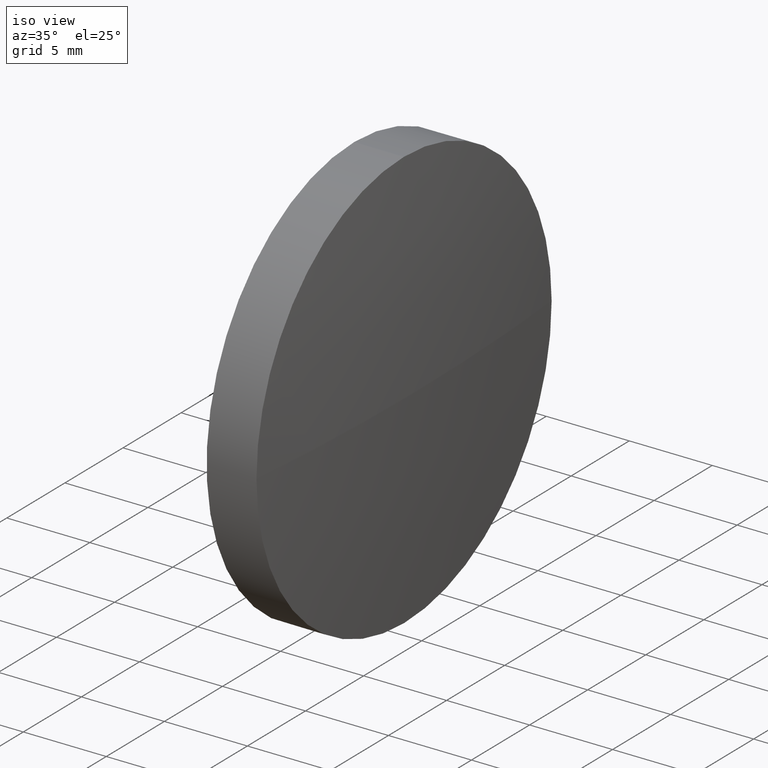
[diagram: clean part render]
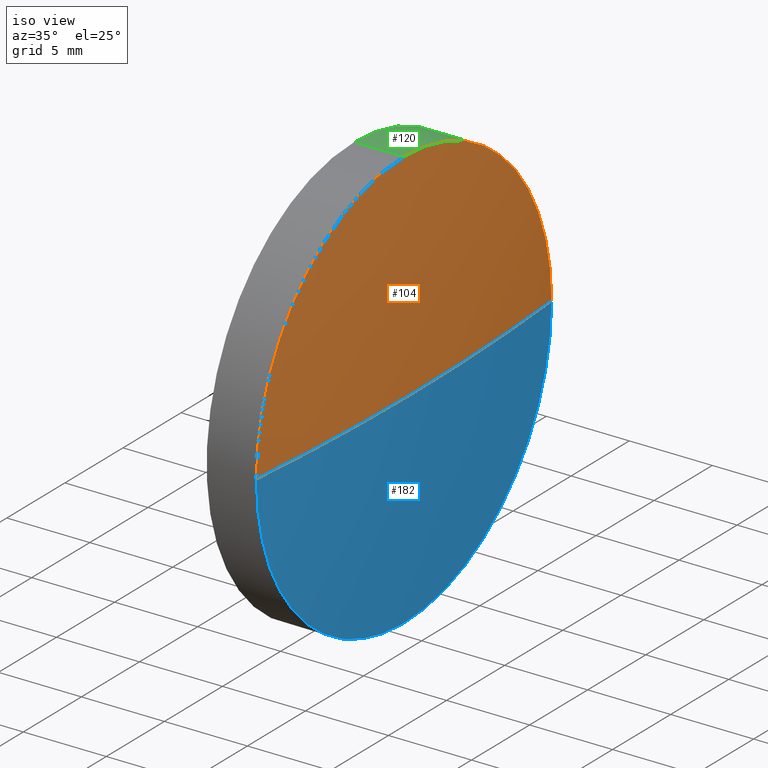
[diagram: same view with three faces highlighted in distinct colors, each labeled with its STEP entity id]
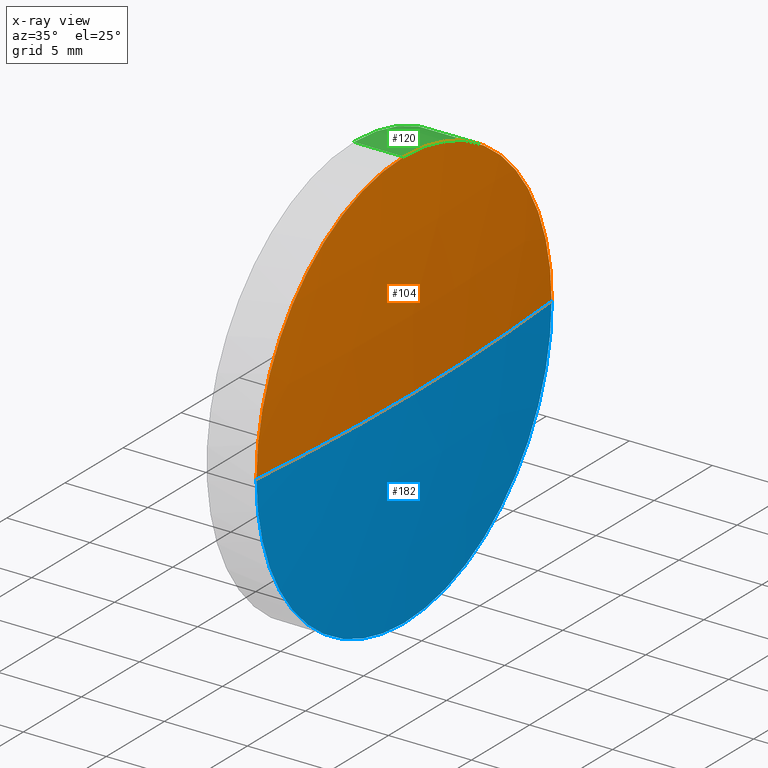
[diagram: x-ray of the same camera — body ghosted, the three highlighted faces saturated]
A machine part, iso view with three faces highlighted in distinct colors.
The next image is the same camera in x-ray (body ghosted, the three faces saturated) — at least one of them is partly hidden behind the body in this view.
Their STEP definitions:

[orange] entity #104 — the highlighted spherical surface has radius 138.023 mm.
#2 = ORIENTED_EDGE ( 'NONE', *, *, #130, .F. ) ;
#6 = FACE_OUTER_BOUND ( 'NONE', #22, .T. ) ;
#8 = ORIENTED_EDGE ( 'NONE', *, *, #143, .F. ) ;
#13 = CARTESIAN_POINT ( 'NONE',  ( 118.7740777732635700, 65.23355492641219700, 0.0000000000000000000 ) ) ;
#18 = AXIS2_PLACEMENT_3D ( 'NONE', #151, #109, #78 ) ;
#22 = EDGE_LOOP ( 'NONE', ( #8, #73, #2, #126 ) ) ;
#26 = CIRCLE ( 'NONE', #173, 12.70000000000000300 ) ;
#29 = DIRECTION ( 'NONE',  ( 0.0000000000000000000, -1.000000000000000000, -1.224646799147353200E-016 ) ) ;
#30 = CARTESIAN_POINT ( 'NONE',  ( 118.7740777732635700, 65.23355492641219700, 0.0000000000000000000 ) ) ;
#32 = DIRECTION ( 'NONE',  ( -1.000000000000000000, -0.0000000000000000000, -0.0000000000000000000 ) ) ;
#42 = DIRECTION ( 'NONE',  ( 0.0000000000000000000, 0.0000000000000000000, 1.000000000000000000 ) ) ;
#47 = SPHERICAL_SURFACE ( 'NONE', #158, 138.0229999999999700 ) ;
#55 = CIRCLE ( 'NONE', #183, 138.0229999999999700 ) ;
#57 = DIRECTION ( 'NONE',  ( 0.0000000000000000000, 0.0000000000000000000, 1.000000000000000000 ) ) ;
#58 = CARTESIAN_POINT ( 'NONE',  ( -18.66339356916181200, 65.23355492641235300, 0.0000000000000000000 ) ) ;
#73 = ORIENTED_EDGE ( 'NONE', *, *, #134, .T. ) ;
#75 = CIRCLE ( 'NONE', #166, 12.70000000000000300 ) ;
#78 = DIRECTION ( 'NONE',  ( -1.000000000000000000, 0.0000000000000000000, 0.0000000000000000000 ) ) ;
#79 = DIRECTION ( 'NONE',  ( 0.0000000000000000000, 0.0000000000000000000, 1.000000000000000000 ) ) ;
#83 = DIRECTION ( 'NONE',  ( 0.0000000000000000000, -1.000000000000000000, 0.0000000000000000000 ) ) ;
#84 = VERTEX_POINT ( 'NONE', #148 ) ;
#96 = CARTESIAN_POINT ( 'NONE',  ( 119.3596064308381700, 65.23355492641233900, 0.0000000000000000000 ) ) ;
#99 = EDGE_CURVE ( 'NONE', #119, #142, #75, .T. ) ;
#104 = ADVANCED_FACE ( 'NONE', ( #6 ), #47, .T. ) ;
#107 = CARTESIAN_POINT ( 'NONE',  ( 118.7740777732635700, 65.23355492641219700, 12.70000000000000300 ) ) ;
#109 = DIRECTION ( 'NONE',  ( 0.0000000000000000000, 0.0000000000000000000, -1.000000000000000000 ) ) ;
#111 = DIRECTION ( 'NONE',  ( -1.000000000000000000, -0.0000000000000000000, -0.0000000000000000000 ) ) ;
#119 = VERTEX_POINT ( 'NONE', #124 ) ;
#124 = CARTESIAN_POINT ( 'NONE',  ( 118.7740777732635700, 52.53355492641231500, 0.0000000000000000000 ) ) ;
#126 = ORIENTED_EDGE ( 'NONE', *, *, #99, .F. ) ;
#130 = EDGE_CURVE ( 'NONE', #142, #84, #26, .T. ) ;
#133 = CIRCLE ( 'NONE', #18, 138.0229999999999700 ) ;
#134 = EDGE_CURVE ( 'NONE', #150, #84, #55, .T. ) ;
#137 = CARTESIAN_POINT ( 'NONE',  ( -18.66339356916181200, 65.23355492641235300, 0.0000000000000000000 ) ) ;
#142 = VERTEX_POINT ( 'NONE', #107 ) ;
#143 = EDGE_CURVE ( 'NONE', #150, #119, #133, .T. ) ;
#148 = CARTESIAN_POINT ( 'NONE',  ( 118.7740777732635700, 77.93355492641224200, 1.555301434917124400E-015 ) ) ;
#150 = VERTEX_POINT ( 'NONE', #96 ) ;
#151 = CARTESIAN_POINT ( 'NONE',  ( -18.66339356916181200, 65.23355492641235300, 0.0000000000000000000 ) ) ;
#152 = DIRECTION ( 'NONE',  ( 0.0000000000000000000, -1.224646799147353200E-016, 1.000000000000000000 ) ) ;
#158 = AXIS2_PLACEMENT_3D ( 'NONE', #137, #79, #83 ) ;
#166 = AXIS2_PLACEMENT_3D ( 'NONE', #13, #111, #57 ) ;
#173 = AXIS2_PLACEMENT_3D ( 'NONE', #30, #32, #42 ) ;
#183 = AXIS2_PLACEMENT_3D ( 'NONE', #58, #152, #29 ) ;

[blue] entity #182 — the highlighted spherical surface has radius 138.023 mm.
#12 = ORIENTED_EDGE ( 'NONE', *, *, #24, .F. ) ;
#15 = DIRECTION ( 'NONE',  ( 0.0000000000000000000, -1.000000000000000000, 0.0000000000000000000 ) ) ;
#18 = AXIS2_PLACEMENT_3D ( 'NONE', #151, #109, #78 ) ;
#23 = DIRECTION ( 'NONE',  ( -1.000000000000000000, -0.0000000000000000000, -0.0000000000000000000 ) ) ;
#24 = EDGE_CURVE ( 'NONE', #80, #119, #141, .T. ) ;
#25 = EDGE_CURVE ( 'NONE', #84, #80, #52, .T. ) ;
#29 = DIRECTION ( 'NONE',  ( 0.0000000000000000000, -1.000000000000000000, -1.224646799147353200E-016 ) ) ;
#38 = DIRECTION ( 'NONE',  ( 0.0000000000000000000, 0.0000000000000000000, 1.000000000000000000 ) ) ;
#41 = EDGE_LOOP ( 'NONE', ( #50, #118, #12, #117 ) ) ;
#45 = DIRECTION ( 'NONE',  ( 0.0000000000000000000, 0.0000000000000000000, 1.000000000000000000 ) ) ;
#50 = ORIENTED_EDGE ( 'NONE', *, *, #134, .F. ) ;
#52 = CIRCLE ( 'NONE', #77, 12.70000000000000300 ) ;
#53 = CARTESIAN_POINT ( 'NONE',  ( 118.7740777732635700, 65.23355492641219700, 0.0000000000000000000 ) ) ;
#55 = CIRCLE ( 'NONE', #183, 138.0229999999999700 ) ;
#58 = CARTESIAN_POINT ( 'NONE',  ( -18.66339356916181200, 65.23355492641235300, 0.0000000000000000000 ) ) ;
#65 = CARTESIAN_POINT ( 'NONE',  ( 118.7740777732635700, 65.23355492641219700, 0.0000000000000000000 ) ) ;
#77 = AXIS2_PLACEMENT_3D ( 'NONE', #65, #23, #160 ) ;
#78 = DIRECTION ( 'NONE',  ( -1.000000000000000000, 0.0000000000000000000, 0.0000000000000000000 ) ) ;
#80 = VERTEX_POINT ( 'NONE', #145 ) ;
#81 = CARTESIAN_POINT ( 'NONE',  ( -18.66339356916181200, 65.23355492641235300, 0.0000000000000000000 ) ) ;
#84 = VERTEX_POINT ( 'NONE', #148 ) ;
#96 = CARTESIAN_POINT ( 'NONE',  ( 119.3596064308381700, 65.23355492641233900, 0.0000000000000000000 ) ) ;
#97 = AXIS2_PLACEMENT_3D ( 'NONE', #81, #45, #15 ) ;
#98 = FACE_OUTER_BOUND ( 'NONE', #41, .T. ) ;
#109 = DIRECTION ( 'NONE',  ( 0.0000000000000000000, 0.0000000000000000000, -1.000000000000000000 ) ) ;
#112 = AXIS2_PLACEMENT_3D ( 'NONE', #53, #180, #38 ) ;
#114 = SPHERICAL_SURFACE ( 'NONE', #97, 138.0229999999999700 ) ;
#117 = ORIENTED_EDGE ( 'NONE', *, *, #25, .F. ) ;
#118 = ORIENTED_EDGE ( 'NONE', *, *, #143, .T. ) ;
#119 = VERTEX_POINT ( 'NONE', #124 ) ;
#124 = CARTESIAN_POINT ( 'NONE',  ( 118.7740777732635700, 52.53355492641231500, 0.0000000000000000000 ) ) ;
#133 = CIRCLE ( 'NONE', #18, 138.0229999999999700 ) ;
#134 = EDGE_CURVE ( 'NONE', #150, #84, #55, .T. ) ;
#141 = CIRCLE ( 'NONE', #112, 12.70000000000000300 ) ;
#143 = EDGE_CURVE ( 'NONE', #150, #119, #133, .T. ) ;
#145 = CARTESIAN_POINT ( 'NONE',  ( 118.7740777732635700, 65.23355492641219700, -12.70000000000000300 ) ) ;
#148 = CARTESIAN_POINT ( 'NONE',  ( 118.7740777732635700, 77.93355492641224200, 1.555301434917124400E-015 ) ) ;
#150 = VERTEX_POINT ( 'NONE', #96 ) ;
#151 = CARTESIAN_POINT ( 'NONE',  ( -18.66339356916181200, 65.23355492641235300, 0.0000000000000000000 ) ) ;
#152 = DIRECTION ( 'NONE',  ( 0.0000000000000000000, -1.224646799147353200E-016, 1.000000000000000000 ) ) ;
#160 = DIRECTION ( 'NONE',  ( 0.0000000000000000000, 0.0000000000000000000, 1.000000000000000000 ) ) ;
#180 = DIRECTION ( 'NONE',  ( -1.000000000000000000, -0.0000000000000000000, -0.0000000000000000000 ) ) ;
#182 = ADVANCED_FACE ( 'NONE', ( #98 ), #114, .T. ) ;
#183 = AXIS2_PLACEMENT_3D ( 'NONE', #58, #152, #29 ) ;

[green] entity #120 — the highlighted cylindrical surface (partial cylindrical patch) has radius 12.7 mm, axis along (-1, -0, -0).
#5 = LINE ( 'NONE', #76, #54 ) ;
#7 = EDGE_CURVE ( 'NONE', #142, #44, #5, .T. ) ;
#20 = VERTEX_POINT ( 'NONE', #163 ) ;
#21 = DIRECTION ( 'NONE',  ( -1.000000000000000000, -0.0000000000000000000, -0.0000000000000000000 ) ) ;
#23 = DIRECTION ( 'NONE',  ( -1.000000000000000000, -0.0000000000000000000, -0.0000000000000000000 ) ) ;
#25 = EDGE_CURVE ( 'NONE', #84, #80, #52, .T. ) ;
#26 = CIRCLE ( 'NONE', #173, 12.70000000000000300 ) ;
#30 = CARTESIAN_POINT ( 'NONE',  ( 118.7740777732635700, 65.23355492641219700, 0.0000000000000000000 ) ) ;
#32 = DIRECTION ( 'NONE',  ( -1.000000000000000000, -0.0000000000000000000, -0.0000000000000000000 ) ) ;
#35 = ORIENTED_EDGE ( 'NONE', *, *, #63, .F. ) ;
#36 = EDGE_CURVE ( 'NONE', #80, #20, #108, .T. ) ;
#37 = ORIENTED_EDGE ( 'NONE', *, *, #25, .T. ) ;
#39 = CARTESIAN_POINT ( 'NONE',  ( 115.7736064308381300, 65.23355492641219700, 12.70000000000000300 ) ) ;
#40 = CARTESIAN_POINT ( 'NONE',  ( 110.1653732284884500, 65.23355492641219700, -12.70000000000000300 ) ) ;
#42 = DIRECTION ( 'NONE',  ( 0.0000000000000000000, 0.0000000000000000000, 1.000000000000000000 ) ) ;
#44 = VERTEX_POINT ( 'NONE', #39 ) ;
#52 = CIRCLE ( 'NONE', #77, 12.70000000000000300 ) ;
#54 = VECTOR ( 'NONE', #149, 1000.000000000000000 ) ;
#63 = EDGE_CURVE ( 'NONE', #44, #20, #161, .T. ) ;
#65 = CARTESIAN_POINT ( 'NONE',  ( 118.7740777732635700, 65.23355492641219700, 0.0000000000000000000 ) ) ;
#66 = ORIENTED_EDGE ( 'NONE', *, *, #130, .T. ) ;
#74 = DIRECTION ( 'NONE',  ( -1.000000000000000000, -0.0000000000000000000, -0.0000000000000000000 ) ) ;
#76 = CARTESIAN_POINT ( 'NONE',  ( 110.1653732284884500, 65.23355492641219700, 12.70000000000000300 ) ) ;
#77 = AXIS2_PLACEMENT_3D ( 'NONE', #65, #23, #160 ) ;
#80 = VERTEX_POINT ( 'NONE', #145 ) ;
#84 = VERTEX_POINT ( 'NONE', #148 ) ;
#101 = ORIENTED_EDGE ( 'NONE', *, *, #7, .F. ) ;
#103 = VECTOR ( 'NONE', #74, 1000.000000000000000 ) ;
#107 = CARTESIAN_POINT ( 'NONE',  ( 118.7740777732635700, 65.23355492641219700, 12.70000000000000300 ) ) ;
#108 = LINE ( 'NONE', #40, #103 ) ;
#110 = DIRECTION ( 'NONE',  ( -1.000000000000000000, -0.0000000000000000000, -0.0000000000000000000 ) ) ;
#113 = EDGE_LOOP ( 'NONE', ( #37, #171, #35, #101, #66 ) ) ;
#120 = ADVANCED_FACE ( 'NONE', ( #157 ), #174, .T. ) ;
#130 = EDGE_CURVE ( 'NONE', #142, #84, #26, .T. ) ;
#132 = DIRECTION ( 'NONE',  ( 0.0000000000000000000, 0.0000000000000000000, 1.000000000000000000 ) ) ;
#142 = VERTEX_POINT ( 'NONE', #107 ) ;
#145 = CARTESIAN_POINT ( 'NONE',  ( 118.7740777732635700, 65.23355492641219700, -12.70000000000000300 ) ) ;
#146 = AXIS2_PLACEMENT_3D ( 'NONE', #168, #110, #185 ) ;
#148 = CARTESIAN_POINT ( 'NONE',  ( 118.7740777732635700, 77.93355492641224200, 1.555301434917124400E-015 ) ) ;
#149 = DIRECTION ( 'NONE',  ( -1.000000000000000000, -0.0000000000000000000, -0.0000000000000000000 ) ) ;
#156 = AXIS2_PLACEMENT_3D ( 'NONE', #165, #21, #132 ) ;
#157 = FACE_OUTER_BOUND ( 'NONE', #113, .T. ) ;
#160 = DIRECTION ( 'NONE',  ( 0.0000000000000000000, 0.0000000000000000000, 1.000000000000000000 ) ) ;
#161 = CIRCLE ( 'NONE', #156, 12.70000000000000300 ) ;
#163 = CARTESIAN_POINT ( 'NONE',  ( 115.7736064308381300, 65.23355492641219700, -12.70000000000000300 ) ) ;
#165 = CARTESIAN_POINT ( 'NONE',  ( 115.7736064308381300, 65.23355492641219700, 0.0000000000000000000 ) ) ;
#168 = CARTESIAN_POINT ( 'NONE',  ( 110.1653732284884500, 65.23355492641219700, 0.0000000000000000000 ) ) ;
#171 = ORIENTED_EDGE ( 'NONE', *, *, #36, .T. ) ;
#173 = AXIS2_PLACEMENT_3D ( 'NONE', #30, #32, #42 ) ;
#174 = CYLINDRICAL_SURFACE ( 'NONE', #146, 12.70000000000000300 ) ;
#185 = DIRECTION ( 'NONE',  ( 0.0000000000000000000, 0.0000000000000000000, 1.000000000000000000 ) ) ;